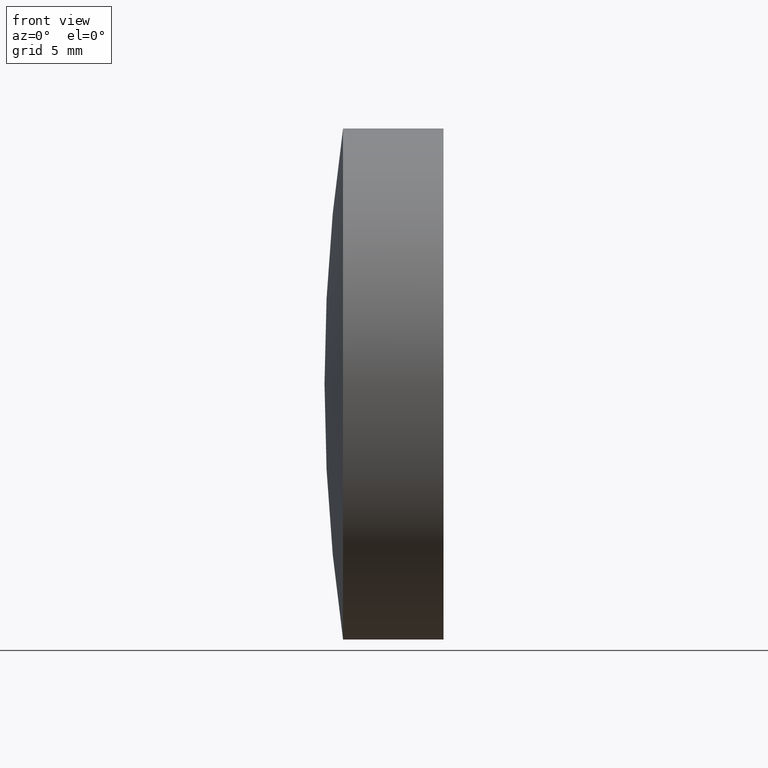
[diagram: clean part render]
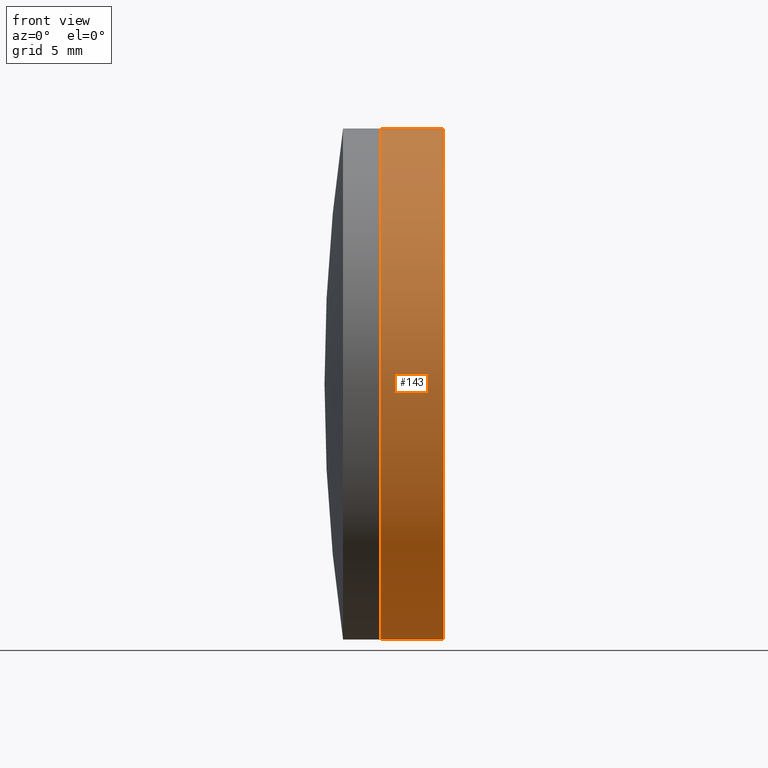
[diagram: same view with one face highlighted and labeled with its STEP entity id]
A machine part, front view. The second image highlights one B-rep face of the part: STEP entity #143.
In plain terms, the highlighted cylindrical surface (partial cylindrical patch) has radius 12.7 mm, axis along (-1, -0, -0).
Its self-contained STEP definition (entity closure, byte-faithful):
#2 = VERTEX_POINT ( 'NONE', #332 ) ;
#4 = VERTEX_POINT ( 'NONE', #94 ) ;
#7 = CARTESIAN_POINT ( 'NONE',  ( -0.5519199926577972300, 1.555301434917150900E-015, -12.70000000000010100 ) ) ;
#14 = DIRECTION ( 'NONE',  ( -1.000000000000000000, -0.0000000000000000000, -0.0000000000000000000 ) ) ;
#28 = ORIENTED_EDGE ( 'NONE', *, *, #108, .F. ) ;
#29 = DIRECTION ( 'NONE',  ( -1.000000000000000000, -0.0000000000000000000, -0.0000000000000000000 ) ) ;
#35 = CARTESIAN_POINT ( 'NONE',  ( -0.5519199926577972300, 0.0000000000000000000, 12.70000000000010100 ) ) ;
#63 = CIRCLE ( 'NONE', #77, 12.70000000000010100 ) ;
#77 = AXIS2_PLACEMENT_3D ( 'NONE', #177, #14, #204 ) ;
#80 = LINE ( 'NONE', #7, #158 ) ;
#81 = AXIS2_PLACEMENT_3D ( 'NONE', #289, #124, #310 ) ;
#89 = CARTESIAN_POINT ( 'NONE',  ( 98.19036787198696500, -1.555301434917148100E-015, 12.70000000000007900 ) ) ;
#90 = DIRECTION ( 'NONE',  ( -1.000000000000000000, -0.0000000000000000000, -0.0000000000000000000 ) ) ;
#94 = CARTESIAN_POINT ( 'NONE',  ( 95.07472966492230200, 0.0000000000000000000, 12.70000000000002100 ) ) ;
#108 = EDGE_CURVE ( 'NONE', #2, #197, #80, .T. ) ;
#114 = CIRCLE ( 'NONE', #81, 12.70000000000010100 ) ;
#124 = DIRECTION ( 'NONE',  ( -1.000000000000000000, -0.0000000000000000000, -0.0000000000000000000 ) ) ;
#131 = EDGE_CURVE ( 'NONE', #174, #4, #317, .T. ) ;
#141 = CARTESIAN_POINT ( 'NONE',  ( -0.5519199926577972300, 0.0000000000000000000, 0.0000000000000000000 ) ) ;
#143 = ADVANCED_FACE ( 'NONE', ( #323 ), #299, .T. ) ;
#150 = VECTOR ( 'NONE', #90, 1000.000000000000000 ) ;
#158 = VECTOR ( 'NONE', #29, 1000.000000000000000 ) ;
#174 = VERTEX_POINT ( 'NONE', #89 ) ;
#177 = CARTESIAN_POINT ( 'NONE',  ( 98.19036787198697900, 0.0000000000000000000, 0.0000000000000000000 ) ) ;
#188 = EDGE_CURVE ( 'NONE', #197, #4, #114, .T. ) ;
#192 = EDGE_CURVE ( 'NONE', #2, #174, #63, .T. ) ;
#197 = VERTEX_POINT ( 'NONE', #230 ) ;
#204 = DIRECTION ( 'NONE',  ( 0.0000000000000000000, 0.0000000000000000000, 1.000000000000000000 ) ) ;
#212 = ORIENTED_EDGE ( 'NONE', *, *, #188, .F. ) ;
#230 = CARTESIAN_POINT ( 'NONE',  ( 95.07472966492230200, 1.555301434917141200E-015, -12.70000000000006500 ) ) ;
#235 = AXIS2_PLACEMENT_3D ( 'NONE', #141, #253, #286 ) ;
#253 = DIRECTION ( 'NONE',  ( -1.000000000000000000, -0.0000000000000000000, -0.0000000000000000000 ) ) ;
#273 = ORIENTED_EDGE ( 'NONE', *, *, #192, .T. ) ;
#286 = DIRECTION ( 'NONE',  ( 0.0000000000000000000, 0.0000000000000000000, 1.000000000000000000 ) ) ;
#289 = CARTESIAN_POINT ( 'NONE',  ( 95.07472966492230200, 0.0000000000000000000, 0.0000000000000000000 ) ) ;
#299 = CYLINDRICAL_SURFACE ( 'NONE', #235, 12.70000000000010100 ) ;
#302 = EDGE_LOOP ( 'NONE', ( #28, #273, #318, #212 ) ) ;
#310 = DIRECTION ( 'NONE',  ( 0.0000000000000000000, 0.0000000000000000000, 1.000000000000000000 ) ) ;
#317 = LINE ( 'NONE', #35, #150 ) ;
#318 = ORIENTED_EDGE ( 'NONE', *, *, #131, .T. ) ;
#323 = FACE_OUTER_BOUND ( 'NONE', #302, .T. ) ;
#332 = CARTESIAN_POINT ( 'NONE',  ( 98.19036787198696500, 0.0000000000000000000, -12.70000000000007900 ) ) ;